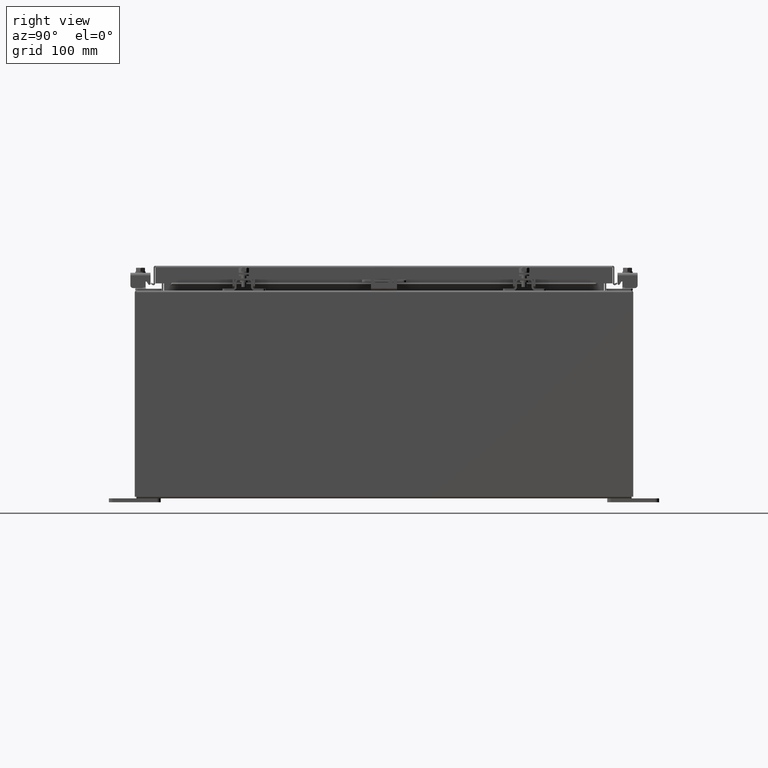
[diagram: clean part render]
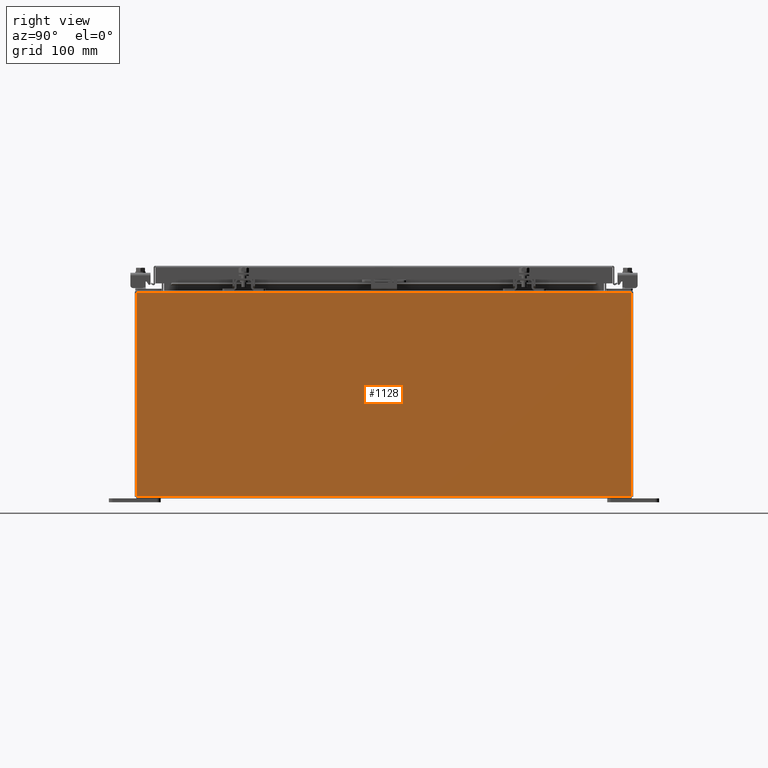
[diagram: same view with one face highlighted and labeled with its STEP entity id]
A machine part, right view. The second image highlights one B-rep face of the part: STEP entity #1128.
In plain terms, the highlighted planar face has unit normal (-1, 0, 0).
Its self-contained STEP definition (entity closure, byte-faithful):
#239 = LINE ( 'NONE', #28332, #7748 ) ;
#1128 = ADVANCED_FACE ( 'NONE', ( #19589 ), #29804, .F. ) ;
#2196 = EDGE_LOOP ( 'NONE', ( #31448, #12720, #11535, #28770 ) ) ;
#2366 = EDGE_CURVE ( 'NONE', #25730, #28851, #12456, .T. ) ;
#3155 = VERTEX_POINT ( 'NONE', #32446 ) ;
#3567 = LINE ( 'NONE', #13534, #16146 ) ;
#5762 = VECTOR ( 'NONE', #8283, 39.37007874015748100 ) ;
#7263 = EDGE_CURVE ( 'NONE', #17731, #25730, #3567, .T. ) ;
#7748 = VECTOR ( 'NONE', #13353, 39.37007874015748100 ) ;
#8283 = DIRECTION ( 'NONE',  ( -0.0000000000000000000, -1.000000000000000000, -0.0000000000000000000 ) ) ;
#8501 = CARTESIAN_POINT ( 'NONE',  ( 10.00000000000003600, 11.92530000000000000, 9.837599999999994800 ) ) ;
#11535 = ORIENTED_EDGE ( 'NONE', *, *, #25684, .F. ) ;
#11952 = LINE ( 'NONE', #12367, #25303 ) ;
#12367 = CARTESIAN_POINT ( 'NONE',  ( 10.00000000000000000, -11.92530000000000000, 0.01299999999999984700 ) ) ;
#12456 = LINE ( 'NONE', #8501, #5762 ) ;
#12720 = ORIENTED_EDGE ( 'NONE', *, *, #29814, .T. ) ;
#13353 = DIRECTION ( 'NONE',  ( -3.523082860860888200E-015, 0.0000000000000000000, -1.000000000000000000 ) ) ;
#13534 = CARTESIAN_POINT ( 'NONE',  ( 10.00000000000000000, 11.92530000000000000, -3.286577851208143900E-014 ) ) ;
#13845 = DIRECTION ( 'NONE',  ( 3.523082860860888200E-015, -2.201926788038055100E-016, 1.000000000000000000 ) ) ;
#14979 = CARTESIAN_POINT ( 'NONE',  ( 10.00000000000003600, 11.92529999999999800, 9.837599999999994800 ) ) ;
#16146 = VECTOR ( 'NONE', #13845, 39.37007874015748100 ) ;
#17488 = AXIS2_PLACEMENT_3D ( 'NONE', #29762, #29732, #29662 ) ;
#17731 = VERTEX_POINT ( 'NONE', #23236 ) ;
#19589 = FACE_OUTER_BOUND ( 'NONE', #2196, .T. ) ;
#23236 = CARTESIAN_POINT ( 'NONE',  ( 10.00000000000000000, 11.92529999999999800, 0.01299999999999984700 ) ) ;
#25303 = VECTOR ( 'NONE', #29846, 39.37007874015748100 ) ;
#25684 = EDGE_CURVE ( 'NONE', #17731, #3155, #11952, .T. ) ;
#25730 = VERTEX_POINT ( 'NONE', #14979 ) ;
#28332 = CARTESIAN_POINT ( 'NONE',  ( 10.00000000000000000, -11.92530000000000000, -3.549164226462045900E-014 ) ) ;
#28770 = ORIENTED_EDGE ( 'NONE', *, *, #7263, .T. ) ;
#28851 = VERTEX_POINT ( 'NONE', #31535 ) ;
#29662 = DIRECTION ( 'NONE',  ( 3.523082860860887800E-015, 0.0000000000000000000, 1.000000000000000000 ) ) ;
#29732 = DIRECTION ( 'NONE',  ( -1.000000000000000000, 0.0000000000000000000, 3.523082860860887800E-015 ) ) ;
#29762 = CARTESIAN_POINT ( 'NONE',  ( 10.00000000000000000, 0.0000000000000000000, -3.549164226462045900E-014 ) ) ;
#29804 = PLANE ( 'NONE',  #17488 ) ;
#29814 = EDGE_CURVE ( 'NONE', #28851, #3155, #239, .T. ) ;
#29846 = DIRECTION ( 'NONE',  ( -0.0000000000000000000, -1.000000000000000000, -0.0000000000000000000 ) ) ;
#31448 = ORIENTED_EDGE ( 'NONE', *, *, #2366, .T. ) ;
#31535 = CARTESIAN_POINT ( 'NONE',  ( 10.00000000000003600, -11.92530000000000000, 9.837600000000001900 ) ) ;
#32446 = CARTESIAN_POINT ( 'NONE',  ( 10.00000000000000000, -11.92530000000000000, 0.01299999999999984300 ) ) ;